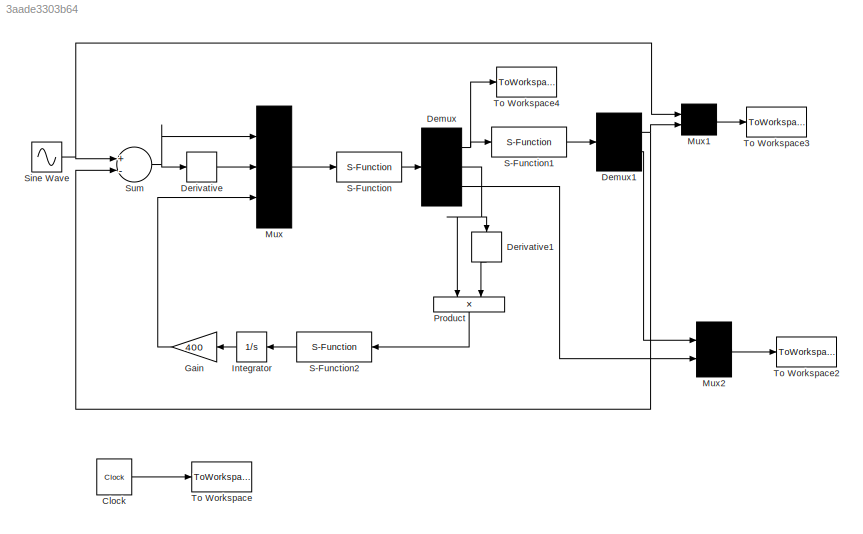
MODEL slx_3aade3303b64
KIND model
CONFIG AbsTol = auto
CONFIG EnableMultiTasking = on
CONFIG FixedStep = auto
CONFIG MaxStep = auto
CONFIG MinStep = auto
CONFIG RelTol = 1e-3
CONFIG SampleTimeConstraint = Unconstrained
CONFIG Solver = ode45
CONFIG SolverName = ode45
CONFIG StartTime = 0.0
CONFIG StopTime = 10.0
BLOCK [Clock] Clock
  DisplayTime = on
BLOCK [Demux] Demux
  Outputs = 3
  Ports = [1, 3]
BLOCK [Demux] Demux1
  Outputs = 2
  Ports = [1, 2]
BLOCK [Derivative] Derivative
BLOCK [Derivative] Derivative1
BLOCK [Gain] Gain
  Gain = 400
  OutDataTypeStr = Inherit: Inherit via internal rule
  ParamDataTypeStr = Inherit: Inherit via internal rule
  SaturateOnIntegerOverflow = off
BLOCK [Integrator] Integrator
  Ports = [1, 1]
BLOCK [Mux] Mux
  Inputs = 3
  Ports = [3, 1]
BLOCK [Mux] Mux1
  Inputs = 2
  Ports = [2, 1]
BLOCK [Mux] Mux2
  Inputs = 2
  Ports = [2, 1]
BLOCK [Product] Product
  InputSameDT = off
  OutDataTypeStr = Inherit: Inherit via internal rule
  Ports = [2, 1]
  RndMeth = Floor
  SaturateOnIntegerOverflow = off
BLOCK [S-Function] S-Function
  EnableBusSupport = off
  FunctionName = chap9_2ctrl
  Ports = [1, 1]
  SFcnIsStateOwnerBlock = off
  SFunctionDeploymentMode = off
  SFunctionModules = 'chap9_2ctrl'
BLOCK [S-Function] S-Function1
  EnableBusSupport = off
  FunctionName = chap9_2plant
  Ports = [1, 1]
  SFcnIsStateOwnerBlock = off
  SFunctionDeploymentMode = off
  SFunctionModules = 'chap9_2plant'
BLOCK [S-Function] S-Function2
  EnableBusSupport = off
  FunctionName = chap9_2rule
  Ports = [1, 1]
  SFcnIsStateOwnerBlock = off
  SFunctionDeploymentMode = off
  SFunctionModules = 'chap9_2rule'
BLOCK [Sin] Sine Wave
  Frequency = 2*pi
  Ports = [0, 1]
  SampleTime = 0
BLOCK [Sum] Sum
  InputSameDT = off
  Inputs = +-
  OutDataTypeStr = Inherit: Inherit via internal rule
  Ports = [2, 1]
  SaturateOnIntegerOverflow = off
BLOCK [ToWorkspace] To Workspace
  FixptAsFi = on
  MaxDataPoints = inf
  Ports = [1]
  SampleTime = -1
  Save2DSignal = 3-D array (concatenate along third dimension)
  VariableName = t
BLOCK [ToWorkspace] To Workspace2
  FixptAsFi = on
  MaxDataPoints = inf
  Ports = [1]
  SampleTime = -1
  Save2DSignal = 3-D array (concatenate along third dimension)
  VariableName = E
BLOCK [ToWorkspace] To Workspace3
  FixptAsFi = on
  MaxDataPoints = inf
  Ports = [1]
  SampleTime = -1
  Save2DSignal = 3-D array (concatenate along third dimension)
  VariableName = y
BLOCK [ToWorkspace] To Workspace4
  FixptAsFi = on
  MaxDataPoints = inf
  Ports = [1]
  SampleTime = -1
  Save2DSignal = 3-D array (concatenate along third dimension)
  VariableName = ut
LINE Clock:1 -> To Workspace:1
NET Demux1:1 -> Mux1:2, Sum:2
LINE Demux1:2 -> Mux2:1
NET Demux:1 -> S-Function1:1, To Workspace4:1
NET Demux:2 -> Derivative1:1, Product:1
LINE Demux:3 -> Mux2:2
LINE Derivative1:1 -> Product:2
LINE Derivative:1 -> Mux:2
LINE Gain:1 -> Mux:3
LINE Integrator:1 -> Gain:1
LINE Mux1:1 -> To Workspace3:1
LINE Mux2:1 -> To Workspace2:1
LINE Mux:1 -> S-Function:1
LINE Product:1 -> S-Function2:1
LINE S-Function1:1 -> Demux1:1
LINE S-Function2:1 -> Integrator:1
LINE S-Function:1 -> Demux:1
NET Sine Wave:1 -> Mux1:1, Sum:1
NET Sum:1 -> Derivative:1, Mux:1
note: NET lines group one-source signal fan-out (src -> all destinations, sorted); 1:1 wires keep LINE
